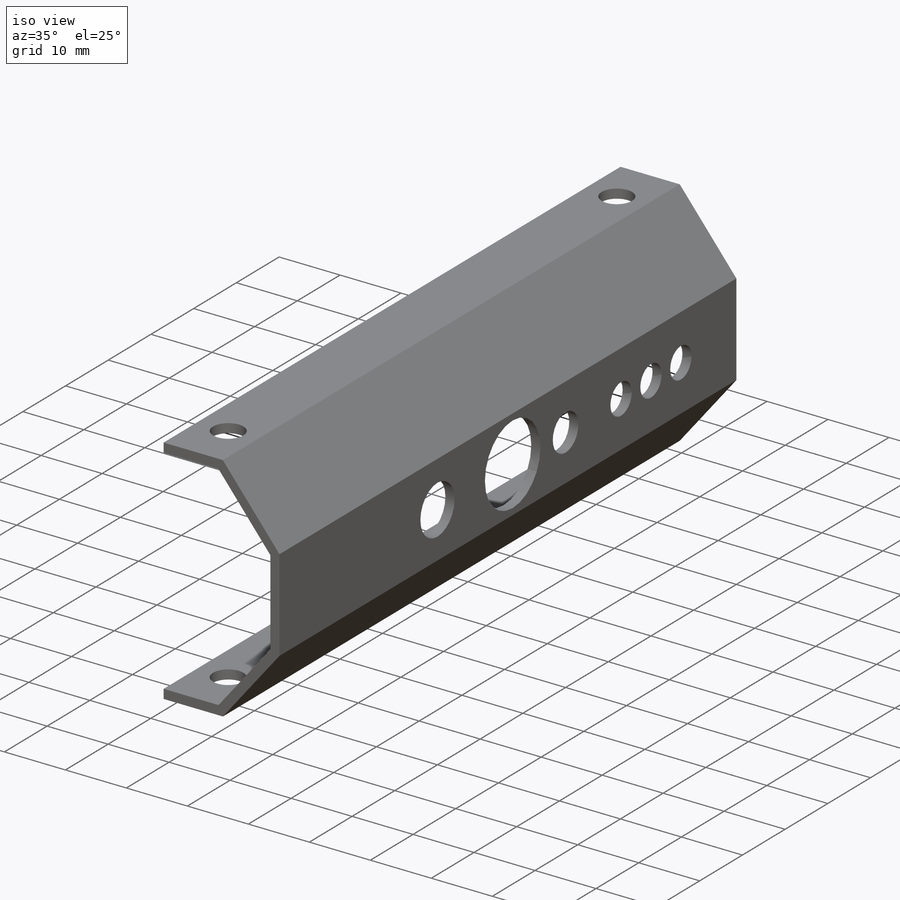
[diagram: iso view]
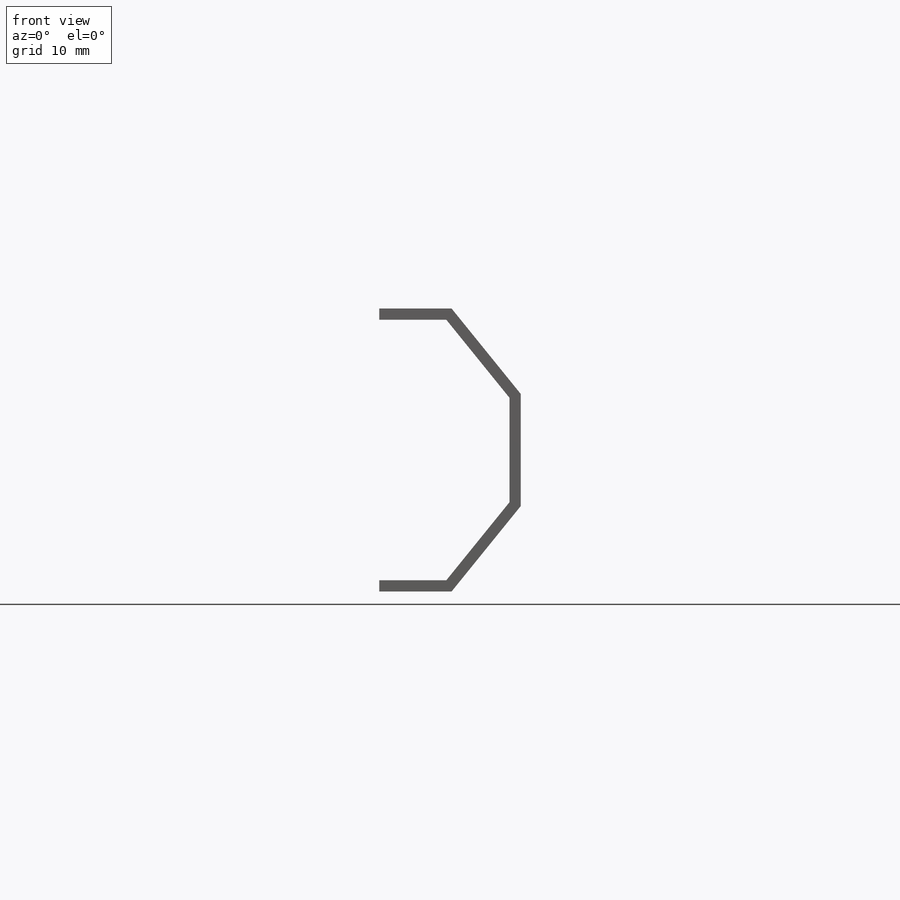
[diagram: front view]
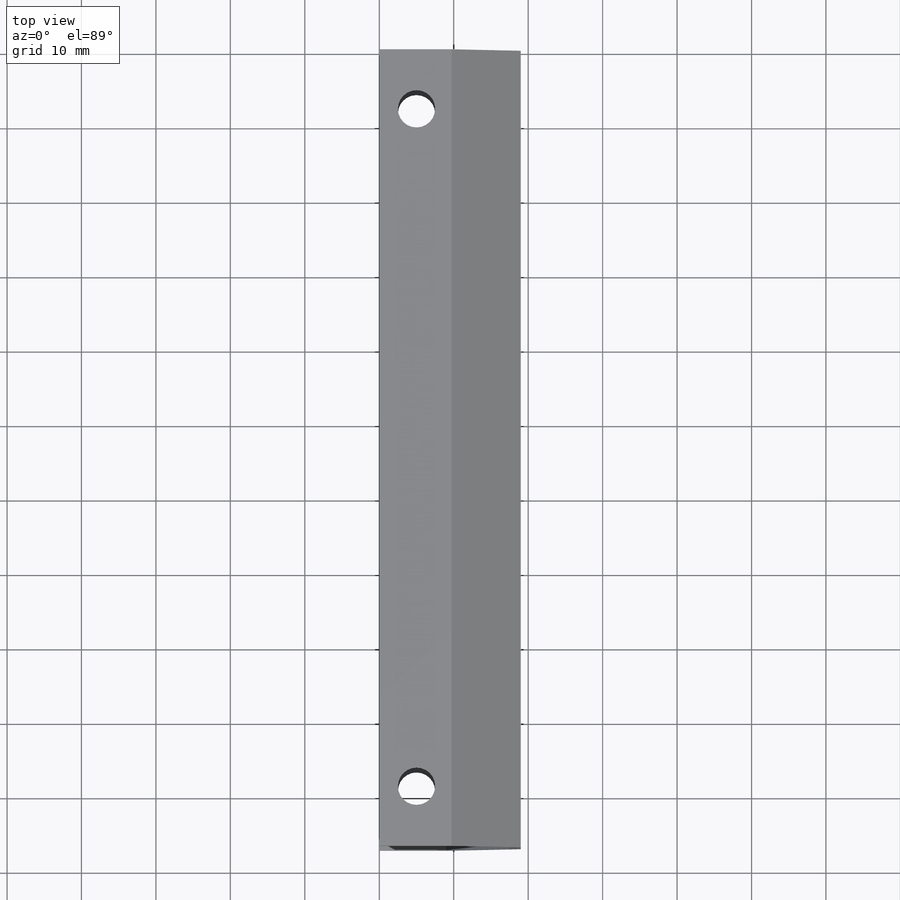
[diagram: top view]
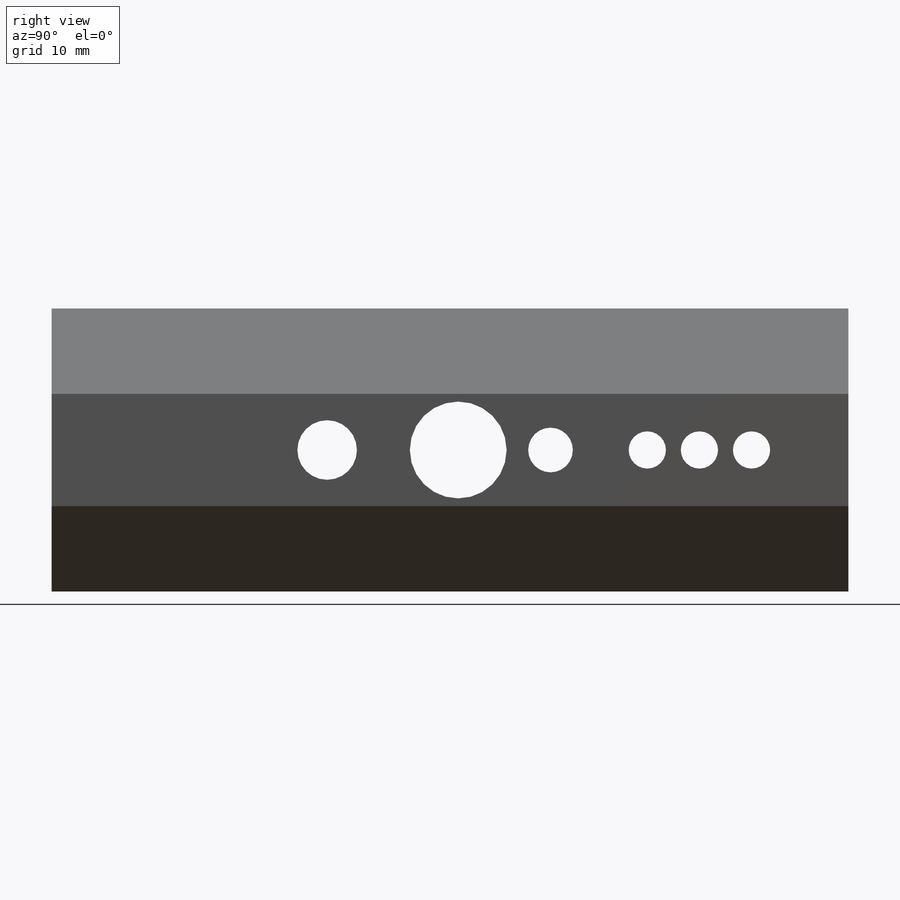
[diagram: right view]
SOLIDWORKS PART (.sldprt)
format: sldprt  version: not decoded by parser v0  size: 405,504 bytes
history: native  units: mm
features: sketch x6, cut_extrude x5, plane x3, material x1, extrude x1 (+10 scaffold rows collapsed)
feature tree (26):
  scaffold x10  (default folders/planes/origin — collapsed)
  material  "Material <sin especificar>"
  plane  "Alzado"
  plane  "Planta"
  plane  "Vista lateral"
  sketch  "Croquis1"  dims[c1.D1=35.0mm c1.D2=14.0mm c1.D3=~7.979816mm c2.D1=9.0mm c2.D2=14.0mm c2.D3=35.0mm c2.D5=19.0mm c2.D4=1.5mm]
  extrude  "Saliente-Extruir1"  Depth=107mm
  sketch  "Croquis3"  dims[D1=5.0mm D2=8.0mm D3=4.0mm D4=~2.089294mm]
  cut_extrude  "Cortar-Extruir1"  [1 undecoded]
  sketch  "Croquis4"  dims[D1=5.0mm D2=8.0mm D3=4.0mm D4=~0.302348mm]
  cut_extrude  "Cortar-Extruir2"  [1 undecoded]
  sketch  "Croquis5"  dims[c1.D1=8.0mm c1.D2=8.0mm c1.D3=6.0mm c2.D1=6.0mm c2.D2=8.0mm c3.D1=40.0mm c3.D2=70.0mm c3.D3=~7.16576mm c4.D1=~0.145027mm c4.D3=70.0mm c4.D4=40.0mm]
  cut_extrude  "Cortar-Extruir3"  [1 undecoded]
  sketch  "Croquis6"  dims[c1.D1=13.0mm c1.D2=~7.968613mm c1.D3=~53.003888mm c2.D2=7.53mm]
  cut_extrude  "Cortar-Extruir4"  [1 undecoded]
  sketch  "Croquis7"  dims[c1.D1=5.0mm c1.D2=5.0mm c1.D3=5.0mm c1.D7=6.0mm c1.D4=7.0mm c1.D5=7.0mm c1.D6=7.535mm c2.D7=~16.318114mm c2.D6=7.535mm c3.D7=13.0mm]
  cut_extrude  "Cortar-Extruir5"  [1 undecoded]
decode coverage: 7 of 12 modeling features carry decoded parameters
note: ~ marks probable driven/reference dimensions
note: 5 parameter values undecoded
summary: no parameter record found for 5 features
note: suppression state not decoded; provenance and decode notes live in map.json
